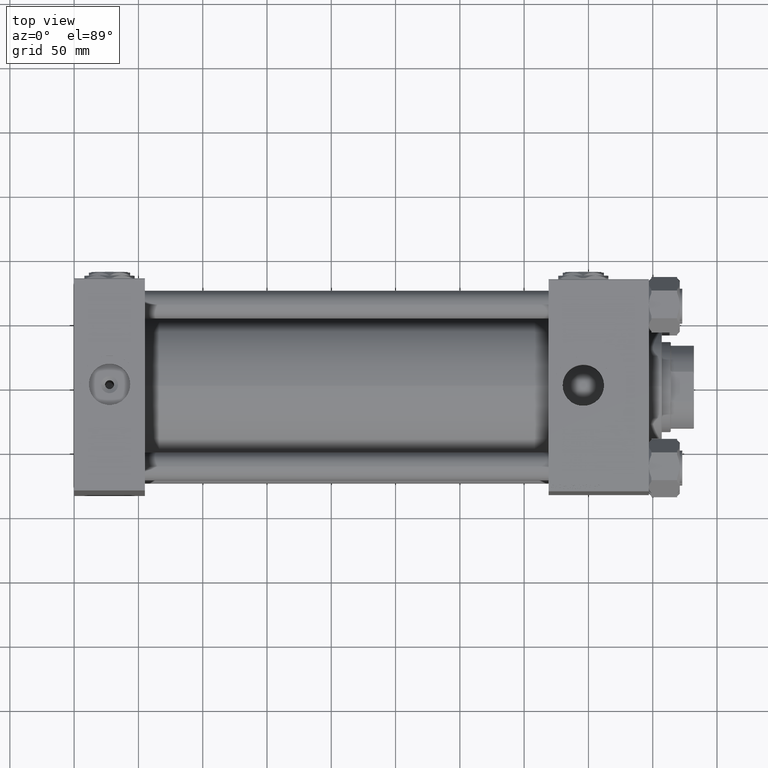
[diagram: clean part render]
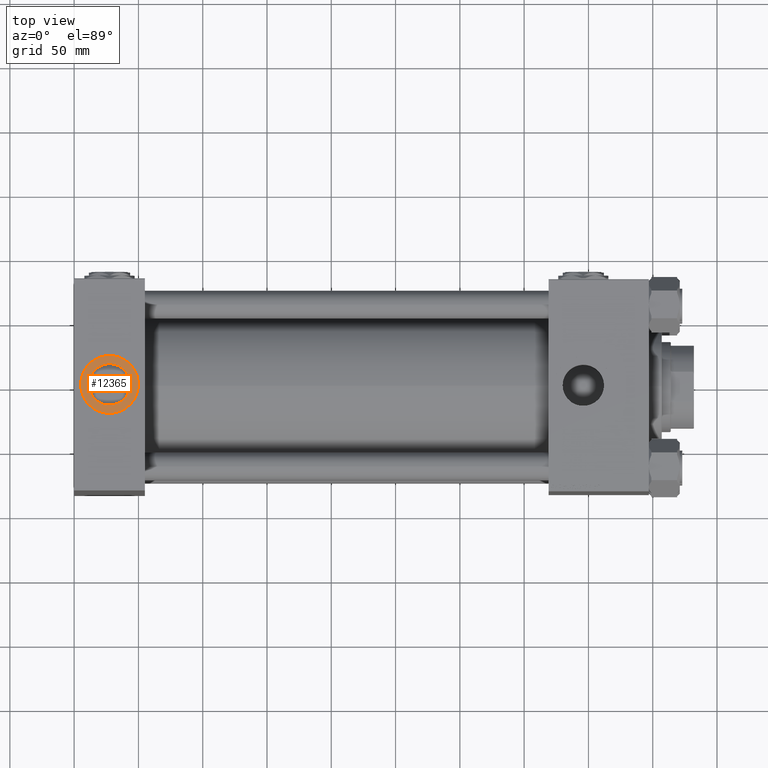
[diagram: same view with one face highlighted and labeled with its STEP entity id]
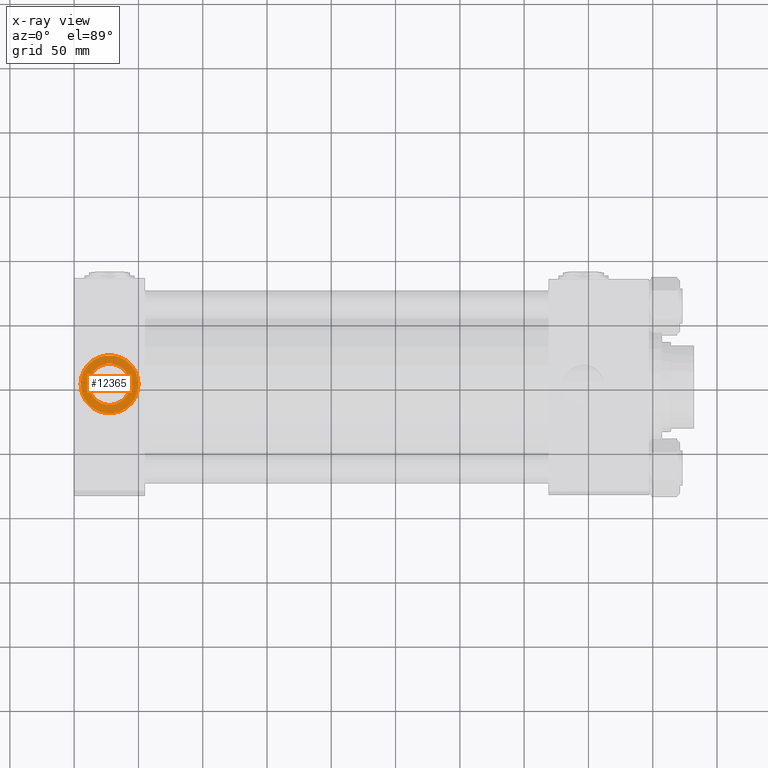
[diagram: x-ray of the same camera — body ghosted, the highlighted face saturated]
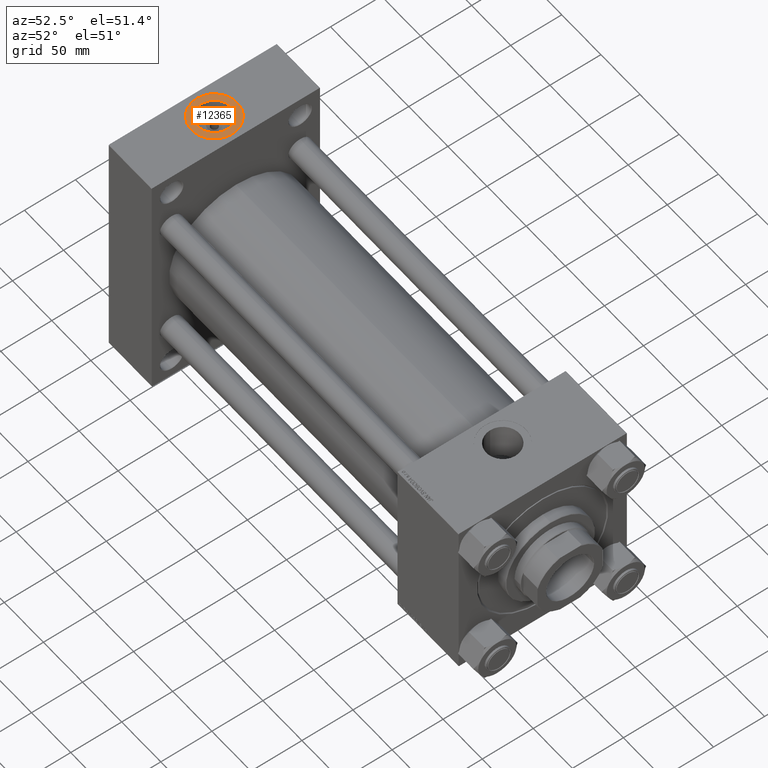
[diagram: same view with one face highlighted and labeled with its STEP entity id]
A machine part, top view. The second image highlights one B-rep face of the part: STEP entity #12365.
The next image is the same camera in x-ray: the body ghosted, the highlighted face saturated — about 0% of this face is hidden behind the body in this view.
A second angle (auxiliary view) of the same face is appended — the face is thin or edge-on in the first view.
In plain terms, the highlighted planar face has unit normal (0, 0, 1).
Its self-contained STEP definition (entity closure, byte-faithful):
#1367 = DIRECTION ( 'NONE',  ( 1.000000000000000000, 0.000000000000000000, 0.000000000000000000 ) ) ;
#2214 = CARTESIAN_POINT ( 'NONE',  ( 50.00000000000000000, -2.250935128525057001E-14, 123.3000000000000114 ) ) ;
#2407 = DIRECTION ( 'NONE',  ( 0.000000000000000000, 0.000000000000000000, 1.000000000000000000 ) ) ;
#2455 = ORIENTED_EDGE ( 'NONE', *, *, #14977, .F. ) ;
#2804 = AXIS2_PLACEMENT_3D ( 'NONE', #11296, #35751, #20058 ) ;
#3643 = VERTEX_POINT ( 'NONE', #34023 ) ;
#6242 = EDGE_LOOP ( 'NONE', ( #42763, #50136 ) ) ;
#7197 = CIRCLE ( 'NONE', #37755, 16.12000000000000455 ) ;
#7803 = FACE_OUTER_BOUND ( 'NONE', #6242, .T. ) ;
#9205 = VERTEX_POINT ( 'NONE', #19924 ) ;
#10298 = AXIS2_PLACEMENT_3D ( 'NONE', #28953, #12994, #44901 ) ;
#11296 = CARTESIAN_POINT ( 'NONE',  ( 27.50000000000000000, -2.250935128525057001E-14, 123.3000000000000114 ) ) ;
#12365 = ADVANCED_FACE ( 'NONE', ( #16052, #7803 ), #35489, .T. ) ;
#12994 = DIRECTION ( 'NONE',  ( 0.000000000000000000, 0.000000000000000000, 1.000000000000000000 ) ) ;
#14977 = EDGE_CURVE ( 'NONE', #9205, #3643, #7197, .T. ) ;
#16052 = FACE_BOUND ( 'NONE', #46630, .T. ) ;
#19924 = CARTESIAN_POINT ( 'NONE',  ( 43.62000000000000455, -2.250935128525057001E-14, 123.3000000000000114 ) ) ;
#20058 = DIRECTION ( 'NONE',  ( 1.000000000000000000, 0.000000000000000000, -0.000000000000000000 ) ) ;
#22032 = AXIS2_PLACEMENT_3D ( 'NONE', #36057, #23819, #35790 ) ;
#23258 = VERTEX_POINT ( 'NONE', #2214 ) ;
#23819 = DIRECTION ( 'NONE',  ( 0.000000000000000000, 0.000000000000000000, 1.000000000000000000 ) ) ;
#23954 = AXIS2_PLACEMENT_3D ( 'NONE', #37838, #2407, #1367 ) ;
#28953 = CARTESIAN_POINT ( 'NONE',  ( 27.50000000000000000, -2.250935128525057001E-14, 123.3000000000000114 ) ) ;
#29692 = EDGE_CURVE ( 'NONE', #3643, #9205, #39884, .T. ) ;
#34023 = CARTESIAN_POINT ( 'NONE',  ( 11.37999999999999012, -2.053522064502503677E-14, 123.3000000000000114 ) ) ;
#34117 = EDGE_CURVE ( 'NONE', #23258, #43167, #41715, .T. ) ;
#34406 = CARTESIAN_POINT ( 'NONE',  ( 27.50000000000000000, -2.250935128525057001E-14, 123.3000000000000114 ) ) ;
#35489 = PLANE ( 'NONE',  #2804 ) ;
#35751 = DIRECTION ( 'NONE',  ( 0.000000000000000000, 0.000000000000000000, 1.000000000000000000 ) ) ;
#35790 = DIRECTION ( 'NONE',  ( 1.000000000000000000, 0.000000000000000000, 0.000000000000000000 ) ) ;
#36057 = CARTESIAN_POINT ( 'NONE',  ( 27.50000000000000000, -2.250935128525057001E-14, 123.3000000000000114 ) ) ;
#37755 = AXIS2_PLACEMENT_3D ( 'NONE', #34406, #46103, #38390 ) ;
#37838 = CARTESIAN_POINT ( 'NONE',  ( 27.50000000000000000, -2.250935128525057001E-14, 123.3000000000000114 ) ) ;
#38390 = DIRECTION ( 'NONE',  ( 1.000000000000000000, 0.000000000000000000, 0.000000000000000000 ) ) ;
#39884 = CIRCLE ( 'NONE', #22032, 16.12000000000000455 ) ;
#41715 = CIRCLE ( 'NONE', #10298, 22.50000000000000355 ) ;
#42763 = ORIENTED_EDGE ( 'NONE', *, *, #34117, .T. ) ;
#43167 = VERTEX_POINT ( 'NONE', #50555 ) ;
#43711 = ORIENTED_EDGE ( 'NONE', *, *, #29692, .F. ) ;
#44901 = DIRECTION ( 'NONE',  ( 1.000000000000000000, 0.000000000000000000, 0.000000000000000000 ) ) ;
#46103 = DIRECTION ( 'NONE',  ( 0.000000000000000000, 0.000000000000000000, 1.000000000000000000 ) ) ;
#46630 = EDGE_LOOP ( 'NONE', ( #2455, #43711 ) ) ;
#47525 = EDGE_CURVE ( 'NONE', #43167, #23258, #50303, .T. ) ;
#50136 = ORIENTED_EDGE ( 'NONE', *, *, #47525, .T. ) ;
#50303 = CIRCLE ( 'NONE', #23954, 22.50000000000000355 ) ;
#50555 = CARTESIAN_POINT ( 'NONE',  ( 4.999999999999993783, -1.975389598716902602E-14, 123.3000000000000114 ) ) ;